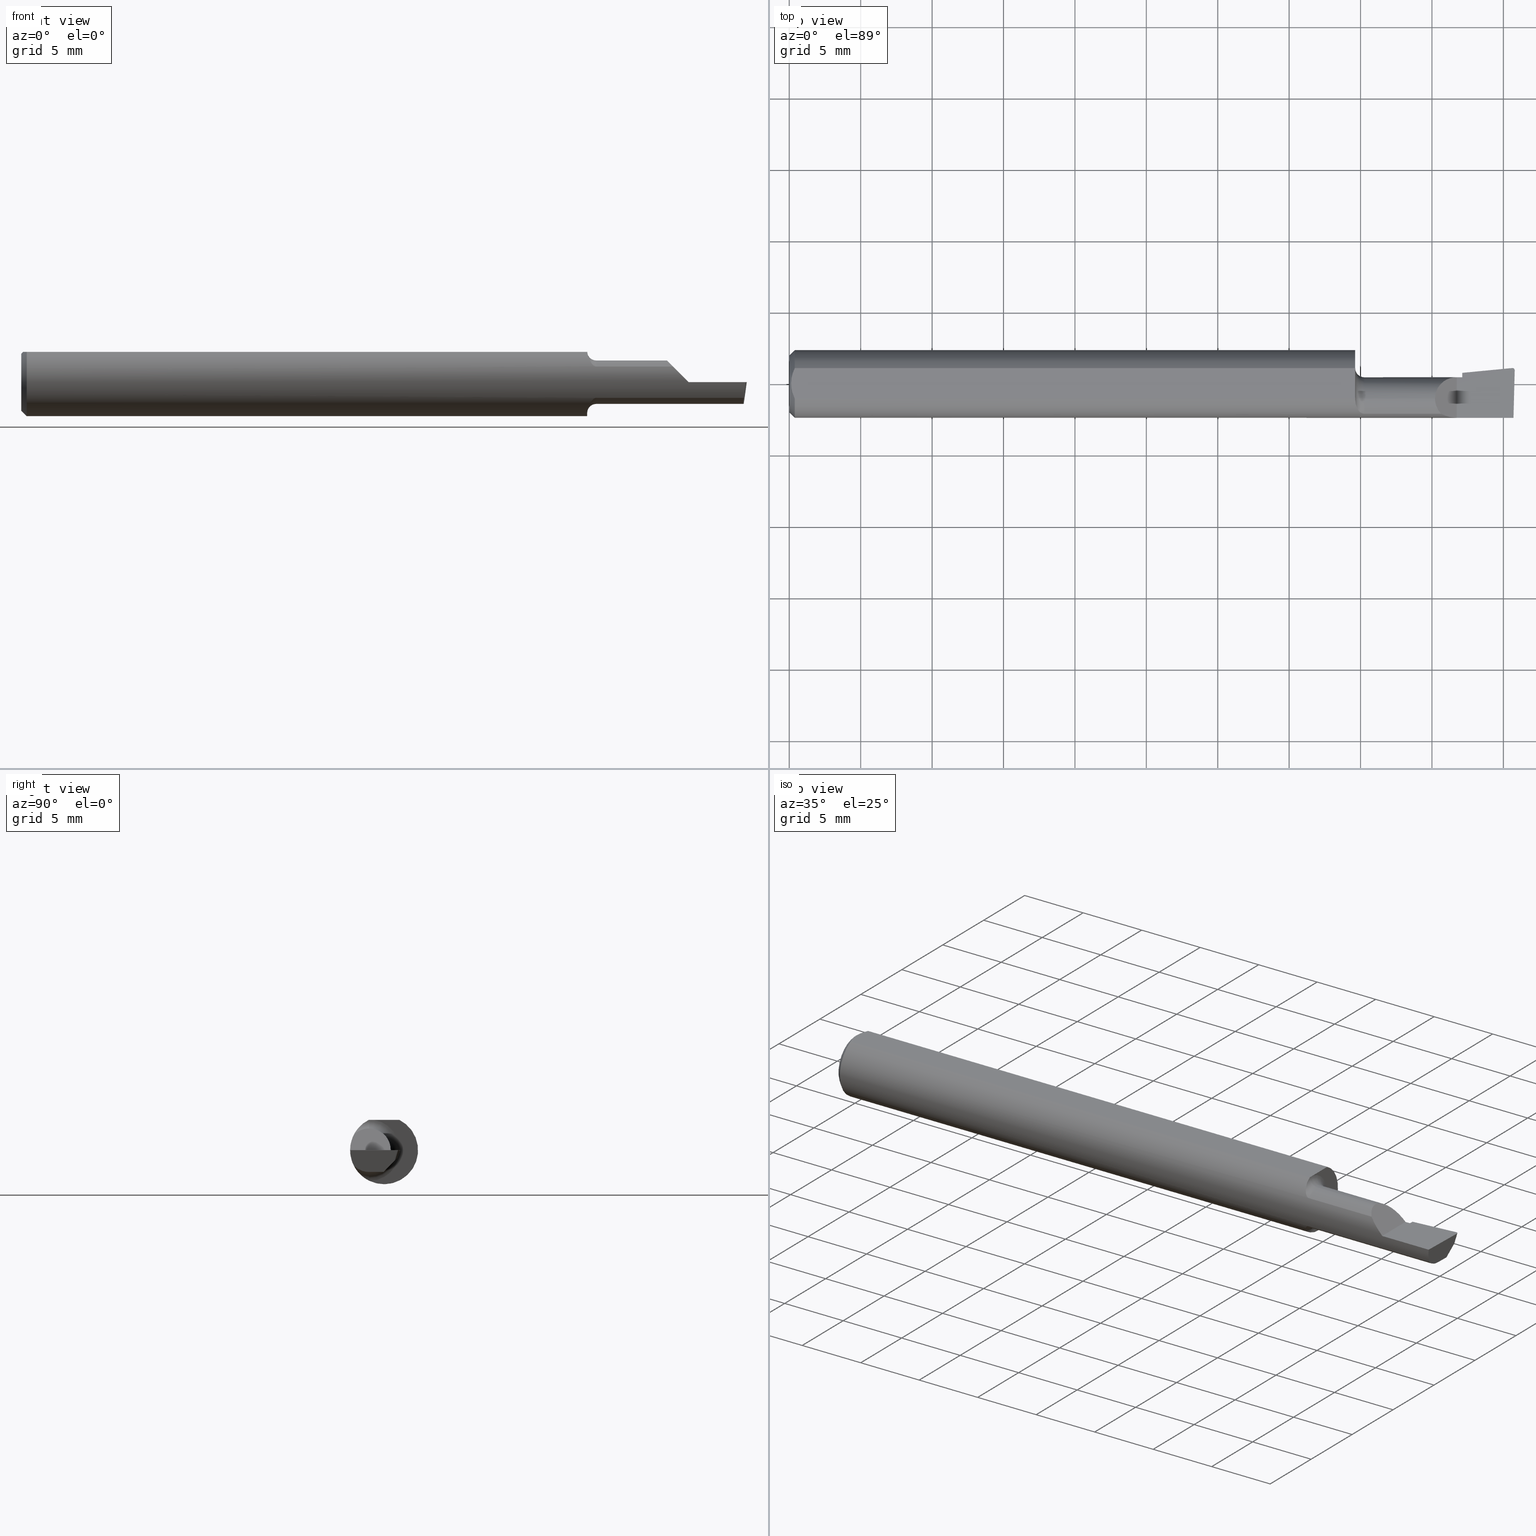
[diagram: canonical four-view strip — front | top / right | iso, engineering-drawing reading convention]
A machine part, canonical four-view strip (front | top / right | iso — engineering-drawing reading convention). The complete STEP part file that produces these views, byte-faithful:
ISO-10303-21;
HEADER;
FILE_DESCRIPTION (( 'STEP AP214' ),
    '1' );
FILE_NAME ('B140400R.STEP',
    '2020-05-08T22:40:07',
    ( '' ),
    ( '' ),
    'SwSTEP 2.0',
    'SolidWorks 2018',
    '' );
FILE_SCHEMA (( 'AUTOMOTIVE_DESIGN' ));
ENDSEC;

DATA;
#1 = DIRECTION ( 'NONE',  ( -0.0000000000000000000, 0.0000000000000000000, 1.000000000000000000 ) ) ;
#2 = VERTEX_POINT ( 'NONE', #658 ) ;
#3 = CARTESIAN_POINT ( 'NONE',  ( 0.01499999999999999598, 0.0000000000000000000, 0.0000000000000000000 ) ) ;
#4 = DIRECTION ( 'NONE',  ( 0.0000000000000000000, 0.0000000000000000000, 1.000000000000000000 ) ) ;
#5 = DIRECTION ( 'NONE',  ( 0.0000000000000000000, 0.0000000000000000000, 1.000000000000000000 ) ) ;
#6 = EDGE_CURVE ( 'NONE', #191, #590, #377, .T. ) ;
#7 = ORIENTED_EDGE ( 'NONE', *, *, #86, .T. ) ;
#8 = ORIENTED_EDGE ( 'NONE', *, *, #29, .F. ) ;
#9 = DIRECTION ( 'NONE',  ( -1.000000000000000000, 0.0000000000000000000, -0.0000000000000000000 ) ) ;
#10 = CIRCLE ( 'NONE', #724, 0.02500000000000007425 ) ;
#11 = VECTOR ( 'NONE', #133, 39.37007874015748143 ) ;
#12 = AXIS2_PLACEMENT_3D ( 'NONE', #186, #131, #129 ) ;
#13 = ORIENTED_EDGE ( 'NONE', *, *, #338, .T. ) ;
#14 = FACE_OUTER_BOUND ( 'NONE', #699, .T. ) ;
#15 = VERTEX_POINT ( 'NONE', #202 ) ;
#16 = CARTESIAN_POINT ( 'NONE',  ( 1.990883086864199569, 0.03733652896197538901, -0.02004403198038583189 ) ) ;
#17 = AXIS2_PLACEMENT_3D ( 'NONE', #3, #293, #723 ) ;
#18 = EDGE_LOOP ( 'NONE', ( #347, #182, #396, #721, #601, #507, #485 ) ) ;
#19 = B_SPLINE_CURVE_WITH_KNOTS ( 'NONE', 3,
 ( #73, #77, #51, #46, #40, #38, #36, #34, #28, #25, #22, #20 ),
 .UNSPECIFIED., .F., .F.,
 ( 4, 2, 2, 2, 2, 4 ),
 ( 4.385794166512837915E-07, 0.0004249653867803446445, 0.0008494921941440380627, 0.001274019001507731372, 0.001486282405189578298, 0.001698545808871425441 ),
 .UNSPECIFIED. ) ;
#20 = CARTESIAN_POINT ( 'NONE',  ( 1.584999999999999964, -0.08307469879518060429, 0.04312255117789304260 ) ) ;
#21 = UNCERTAINTY_MEASURE_WITH_UNIT (LENGTH_MEASURE( 1.000000000000000082E-05 ), #227, 'distance_accuracy_value', 'NONE');
#22 = CARTESIAN_POINT ( 'NONE',  ( 1.582123707331538176, -0.08307469879541819202, 0.04312255117743575561 ) ) ;
#23 = ORIENTED_EDGE ( 'NONE', *, *, #240, .T. ) ;
#24 = DIRECTION ( 'NONE',  ( 1.000000000000000000, 0.0000000000000000000, 0.0000000000000000000 ) ) ;
#25 = CARTESIAN_POINT ( 'NONE',  ( 1.579521451227007711, -0.08233651528522395457, 0.04455777109850305590 ) ) ;
#26 = FACE_OUTER_BOUND ( 'NONE', #173, .T. ) ;
#27 = FACE_OUTER_BOUND ( 'NONE', #469, .T. ) ;
#28 = CARTESIAN_POINT ( 'NONE',  ( 1.575413575230741436, -0.08042664989321213209, 0.04791921015141203249 ) ) ;
#29 = EDGE_CURVE ( 'NONE', #418, #394, #570, .T. ) ;
#30 = CARTESIAN_POINT ( 'NONE',  ( 1.996083844369372917, -0.0008291687483132151315, -0.05990000000000000185 ) ) ;
#31 = EDGE_CURVE ( 'NONE', #215, #88, #675, .T. ) ;
#32 = CARTESIAN_POINT ( 'NONE',  ( 1.990282674007080255, 0.03732143363315362783, -0.02000000000000000042 ) ) ;
#33 = ORIENTED_EDGE ( 'NONE', *, *, #31, .T. ) ;
#34 = CARTESIAN_POINT ( 'NONE',  ( 1.573723886093656876, -0.07921817987507920322, 0.04991299092652130842 ) ) ;
#35 = LENGTH_MEASURE_WITH_UNIT ( LENGTH_MEASURE( 0.02539999999999999897 ), #374 );
#36 = CARTESIAN_POINT ( 'NONE',  ( 1.569277238843510558, -0.07518688180261749732, 0.05595855205958088358 ) ) ;
#37 = LINE ( 'NONE', #550, #436 ) ;
#38 = CARTESIAN_POINT ( 'NONE',  ( 1.567169981117899846, -0.07201923175886887352, 0.06001882546782344452 ) ) ;
#39 = CARTESIAN_POINT ( 'NONE',  ( 0.0000000000000000000, -0.04209513035969835587, 0.08360000000000000764 ) ) ;
#40 = CARTESIAN_POINT ( 'NONE',  ( 1.563721006865827379, -0.06478644025684783536, 0.06776242552123265539 ) ) ;
#41 = FACE_OUTER_BOUND ( 'NONE', #388, .T. ) ;
#42 = DIRECTION ( 'NONE',  ( -1.000000000000000000, -0.0000000000000000000, -0.0000000000000000000 ) ) ;
#43 = ORIENTED_EDGE ( 'NONE', *, *, #323, .F. ) ;
#44 = EDGE_CURVE ( 'NONE', #283, #201, #10, .T. ) ;
#45 = EDGE_LOOP ( 'NONE', ( #665, #708, #66, #352 ) ) ;
#47 = FACE_OUTER_BOUND ( 'NONE', #305, .T. ) ;
#46 = CARTESIAN_POINT ( 'NONE',  ( 1.562429122971264350, -0.06066239981255451552, 0.07149394324265900824 ) ) ;
#48 = CARTESIAN_POINT ( 'NONE',  ( 1.559999999999999831, -0.04014498638740777309, -0.08455714216888016166 ) ) ;
#49 = CARTESIAN_POINT ( 'NONE',  ( 0.01499999999999999598, 0.0000000000000000000, 0.0000000000000000000 ) ) ;
#50 = VERTEX_POINT ( 'NONE', #705 ) ;
#51 = CARTESIAN_POINT ( 'NONE',  ( 1.560661035553191134, -0.05185656404701179806, 0.07811662714583196554 ) ) ;
#52 = ORIENTED_EDGE ( 'NONE', *, *, #383, .F. ) ;
#53 = CARTESIAN_POINT ( 'NONE',  ( 0.0000000000000000000, -0.04149999999999999523, -0.05989999999999998798 ) ) ;
#54 = CARTESIAN_POINT ( 'NONE',  ( 0.005000000000000236026, 1.025183009042025117E-17, 0.08360000000000000764 ) ) ;
#55 = EDGE_CURVE ( 'NONE', #104, #120, #501, .T. ) ;
#56 = SURFACE_STYLE_FILL_AREA ( #406 ) ;
#57 = DIRECTION ( 'NONE',  ( -0.0000000000000000000, 0.0000000000000000000, 1.000000000000000000 ) ) ;
#58 = LINE ( 'NONE', #592, #103 ) ;
#59 = CARTESIAN_POINT ( 'NONE',  ( 1.993512870449314134, 0.04374616680637218036, -7.256471233170699482E-17 ) ) ;
#60 = ORIENTED_EDGE ( 'NONE', *, *, #440, .T. ) ;
#61 = DIRECTION ( 'NONE',  ( 1.000000000000000000, 0.0000000000000000000, 0.0000000000000000000 ) ) ;
#62 = CARTESIAN_POINT ( 'NONE',  ( 1.990393312970557327, -0.04150000000000000216, -0.05990000000000000185 ) ) ;
#63 = CARTESIAN_POINT ( 'NONE',  ( 1.559999999999999831, 0.0000000000000000000, 0.0000000000000000000 ) ) ;
#64 = DIRECTION ( 'NONE',  ( 0.7071067811865391350, 0.0000000000000000000, -0.7071067811865558994 ) ) ;
#65 = LINE ( 'NONE', #309, #630 ) ;
#66 = ORIENTED_EDGE ( 'NONE', *, *, #55, .F. ) ;
#67 = CARTESIAN_POINT ( 'NONE',  ( 0.01206089165507025739, -0.03555991978469312531, 0.08360000000000000764 ) ) ;
#68 = ORIENTED_EDGE ( 'NONE', *, *, #410, .T. ) ;
#69 = VECTOR ( 'NONE', #470, 39.37007874015748143 ) ;
#70 = EDGE_CURVE ( 'NONE', #394, #120, #37, .T. ) ;
#71 = CARTESIAN_POINT ( 'NONE',  ( 1.804911392386147506, 0.01839999999999998234, 0.03508860761385160232 ) ) ;
#72 = FACE_OUTER_BOUND ( 'NONE', #489, .T. ) ;
#73 = CARTESIAN_POINT ( 'NONE',  ( 1.560033712670300110, -0.04209513035969835587, 0.08360000000000000764 ) ) ;
#74 = CARTESIAN_POINT ( 'NONE',  ( 1.584999999999999964, -0.08307469879518090961, -0.04312255117789274422 ) ) ;
#75 = EDGE_LOOP ( 'NONE', ( #480, #561, #135, #525 ) ) ;
#76 = DIMENSIONAL_EXPONENTS ( 1.000000000000000000, 0.0000000000000000000, 0.0000000000000000000, 0.0000000000000000000, 0.0000000000000000000, 0.0000000000000000000, 0.0000000000000000000 ) ;
#77 = CARTESIAN_POINT ( 'NONE',  ( 1.560163936266268259, -0.04714148439307228045, 0.08105900800387488836 ) ) ;
#78 = CONICAL_SURFACE ( 'NONE', #156, 0.09360000000000001652, 0.7853981633974601584 ) ;
#79 = CARTESIAN_POINT ( 'NONE',  ( 1.107894390816139163, -0.04150000000000000216, 4.217516215662293437E-16 ) ) ;
#80 = EDGE_CURVE ( 'NONE', #560, #185, #291, .T. ) ;
#81 = ORIENTED_EDGE ( 'NONE', *, *, #593, .F. ) ;
#82 = EDGE_LOOP ( 'NONE', ( #181, #197, #346, #258, #231, #391, #367, #405 ) ) ;
#83 = AXIS2_PLACEMENT_3D ( 'NONE', #682, #172, #166 ) ;
#84 = DIRECTION ( 'NONE',  ( 1.000000000000000000, 0.0000000000000000000, 0.0000000000000000000 ) ) ;
#85 = ORIENTED_EDGE ( 'NONE', *, *, #31, .F. ) ;
#86 = EDGE_CURVE ( 'NONE', #433, #98, #587, .T. ) ;
#87 = PRESENTATION_STYLE_ASSIGNMENT (( #556 ) ) ;
#88 = VERTEX_POINT ( 'NONE', #461 ) ;
#89 = ADVANCED_FACE ( 'NONE', ( #26 ), #426, .F. ) ;
#90 = MANIFOLD_SOLID_BREP ( '01EF20D8-C4AA-4b41-BB1E-33027A1A4208-GAAFaceID14', #700 ) ;
#91 = ADVANCED_FACE ( 'NONE', ( #599 ), #349, .T. ) ;
#92 = CARTESIAN_POINT ( 'NONE',  ( 1.780099999999999349, -0.05720488466914005338, 0.05989999999999997410 ) ) ;
#93 = LINE ( 'NONE', #115, #11 ) ;
#94 = EDGE_LOOP ( 'NONE', ( #444, #398, #575, #727, #199 ) ) ;
#95 = CARTESIAN_POINT ( 'NONE',  ( 1.560033822879743681, -0.04150000000000000216, 0.08360000000000000764 ) ) ;
#96 = FACE_OUTER_BOUND ( 'NONE', #94, .T. ) ;
#97 = DIRECTION ( 'NONE',  ( -1.000000000000000000, -0.0000000000000000000, -0.0000000000000000000 ) ) ;
#98 = VERTEX_POINT ( 'NONE', #304 ) ;
#99 = DIRECTION ( 'NONE',  ( -1.000000000000000000, -0.0000000000000000000, -0.0000000000000000000 ) ) ;
#100 = CARTESIAN_POINT ( 'NONE',  ( 0.0000000000000000000, 1.054420894065869177E-17, 0.07859999999999965625 ) ) ;
#101 = ADVANCED_FACE ( 'NONE', ( #710 ), #389, .T. ) ;
#102 = EDGE_LOOP ( 'NONE', ( #341, #294, #264, #454 ) ) ;
#103 = VECTOR ( 'NONE', #84, 39.37007874015748143 ) ;
#104 = VERTEX_POINT ( 'NONE', #32 ) ;
#105 = DIRECTION ( 'NONE',  ( 0.0000000000000000000, 0.0000000000000000000, 1.000000000000000000 ) ) ;
#106 = CARTESIAN_POINT ( 'NONE',  ( 1.560006719116742380, -0.04082489400077269487, -0.08423096411932438909 ) ) ;
#107 = AXIS2_PLACEMENT_3D ( 'NONE', #545, #618, #567 ) ;
#108 = CARTESIAN_POINT ( 'NONE',  ( 1.854999999999999982, -0.04150000000000000216, -0.05990000000000000185 ) ) ;
#109 = LINE ( 'NONE', #379, #544 ) ;
#110 = CARTESIAN_POINT ( 'NONE',  ( 1.575354605856553514, -0.08039319987159068703, -0.04797642756495489741 ) ) ;
#111 = APPLICATION_PROTOCOL_DEFINITION ( 'draft international standard', 'automotive_design', 1998, #169 ) ;
#112 = CARTESIAN_POINT ( 'NONE',  ( 1.996386342823452287, -0.09360000000000009979, -6.634435288474569554E-17 ) ) ;
#113 = ORIENTED_EDGE ( 'NONE', *, *, #628, .F. ) ;
#114 = CARTESIAN_POINT ( 'NONE',  ( 0.005975039161239525769, -0.01453776427033148279, 0.08359999999999997988 ) ) ;
#115 = CARTESIAN_POINT ( 'NONE',  ( 0.01499999999999999598, 1.146269404001922775E-17, 0.09360000000000001652 ) ) ;
#116 = ORIENTED_EDGE ( 'NONE', *, *, #532, .T. ) ;
#117 = ADVANCED_FACE ( 'NONE', ( #515 ), #255, .F. ) ;
#118 = LINE ( 'NONE', #625, #247 ) ;
#119 = EDGE_CURVE ( 'NONE', #201, #257, #355, .T. ) ;
#120 = VERTEX_POINT ( 'NONE', #254 ) ;
#121 = VERTEX_POINT ( 'NONE', #209 ) ;
#122 = CARTESIAN_POINT ( 'NONE',  ( 0.005000000000000228220, -0.007328888879231052964, 0.08360000000000000764 ) ) ;
#123 = ORIENTED_EDGE ( 'NONE', *, *, #549, .T. ) ;
#124 = PRODUCT ( 'B140400R', 'B140400R', '', ( #263 ) ) ;
#125 = CARTESIAN_POINT ( 'NONE',  ( 1.994610376530254747, 0.03716006620332611837, -0.02059586115756890587 ) ) ;
#126 = CIRCLE ( 'NONE', #17, 0.09360000000000001652 ) ;
#127 = VERTEX_POINT ( 'NONE', #246 ) ;
#128 = CARTESIAN_POINT ( 'NONE',  ( 1.991365359011874947, -0.08307469879518075695, -0.04312255117789293157 ) ) ;
#129 = DIRECTION ( 'NONE',  ( 0.0000000000000000000, -0.6963153109074925462, -0.7177360153954946975 ) ) ;
#130 = DIRECTION ( 'NONE',  ( 0.9953961983671787417, 0.09584575252022466130, -5.467869873542577569E-16 ) ) ;
#131 = DIRECTION ( 'NONE',  ( 0.06894566448119619773, -0.7160281025913034503, 0.6946583704589934793 ) ) ;
#132 = VERTEX_POINT ( 'NONE', #200 ) ;
#133 = DIRECTION ( 'NONE',  ( 0.7071067811865391350, 8.659560562355035164E-17, 0.7071067811865558994 ) ) ;
#134 = CARTESIAN_POINT ( 'NONE',  ( 0.01499999999999999598, 0.04209513035969837669, 0.08360000000000000764 ) ) ;
#135 = ORIENTED_EDGE ( 'NONE', *, *, #198, .F. ) ;
#136 = VECTOR ( 'NONE', #130, 39.37007874015748143 ) ;
#137 = CARTESIAN_POINT ( 'NONE',  ( 0.0000000000000000000, 0.0000000000000000000, 0.0000000000000000000 ) ) ;
#138 = EDGE_CURVE ( 'NONE', #651, #140, #451, .T. ) ;
#139 = TOROIDAL_SURFACE ( 'NONE', #569, 0.08489999999999997549, 0.02500000000000007425 ) ;
#140 = VERTEX_POINT ( 'NONE', #189 ) ;
#141 = ADVANCED_FACE ( 'NONE', ( #47 ), #78, .T. ) ;
#142 = CARTESIAN_POINT ( 'NONE',  ( 1.796877448822106649, -0.08307469879518077083, 0.04312255117789291076 ) ) ;
#143 = DIRECTION ( 'NONE',  ( 0.0000000000000000000, 0.0000000000000000000, 1.000000000000000000 ) ) ;
#144 = ADVANCED_FACE ( 'NONE', ( #27 ), #153, .F. ) ;
#145 = LINE ( 'NONE', #30, #475 ) ;
#146 = DIRECTION ( 'NONE',  ( -1.000000000000000000, -0.0000000000000000000, -0.0000000000000000000 ) ) ;
#147 = CARTESIAN_POINT ( 'NONE',  ( 1.785977184218892067, -0.07176861043311237587, 0.05402281578110743054 ) ) ;
#148 = FACE_OUTER_BOUND ( 'NONE', #45, .T. ) ;
#149 = EDGE_LOOP ( 'NONE', ( #325, #635, #411, #641, #248 ) ) ;
#150 = ORIENTED_EDGE ( 'NONE', *, *, #370, .F. ) ;
#151 = EDGE_CURVE ( 'NONE', #448, #431, #354, .T. ) ;
#152 = DIRECTION ( 'NONE',  ( 0.0000000000000000000, 0.0000000000000000000, 1.000000000000000000 ) ) ;
#153 = PLANE ( 'NONE',  #12 ) ;
#154 = DIRECTION ( 'NONE',  ( 0.9953961983671800740, 0.09584575252021028391, 0.0000000000000000000 ) ) ;
#155 = FACE_OUTER_BOUND ( 'NONE', #551, .T. ) ;
#156 = AXIS2_PLACEMENT_3D ( 'NONE', #372, #180, #195 ) ;
#157 = TOROIDAL_SURFACE ( 'NONE', #543, 0.08489999999999997549, 0.02500000000000007425 ) ;
#158 = LINE ( 'NONE', #225, #321 ) ;
#159 = ORIENTED_EDGE ( 'NONE', *, *, #370, .T. ) ;
#160 = CARTESIAN_POINT ( 'NONE',  ( 1.824917075065774830, -0.09360000000000001652, 0.01508292493422502302 ) ) ;
#161 = LINE ( 'NONE', #108, #339 ) ;
#162 = EDGE_CURVE ( 'NONE', #2, #594, #19, .T. ) ;
#163 = EDGE_CURVE ( 'NONE', #120, #215, #713, .T. ) ;
#164 = CARTESIAN_POINT ( 'NONE',  ( 1.996386342823452287, -0.09360000000000009979, -6.634435288474569554E-17 ) ) ;
#165 = CARTESIAN_POINT ( 'NONE',  ( 1.719999999999999973, -0.08307469879518075695, 0.04312255117789293157 ) ) ;
#166 = DIRECTION ( 'NONE',  ( 0.0000000000000000000, 0.0000000000000000000, 1.000000000000000000 ) ) ;
#167 = ORIENTED_EDGE ( 'NONE', *, *, #578, .F. ) ;
#168 = CARTESIAN_POINT ( 'NONE',  ( 1.846299648997746123, 0.02345744519840442868, -0.02000000000000000042 ) ) ;
#169 = APPLICATION_CONTEXT ( 'automotive_design' ) ;
#170 = CARTESIAN_POINT ( 'NONE',  ( 1.569237437666585633, -0.07513599091569017618, -0.05602756047418831764 ) ) ;
#171 = ORIENTED_EDGE ( 'NONE', *, *, #44, .T. ) ;
#172 = DIRECTION ( 'NONE',  ( -1.000000000000000000, -0.0000000000000000000, -0.0000000000000000000 ) ) ;
#173 = EDGE_LOOP ( 'NONE', ( #85, #565, #301, #477, #500, #373 ) ) ;
#174 = DIRECTION ( 'NONE',  ( 0.0000000000000000000, 0.0000000000000000000, 1.000000000000000000 ) ) ;
#175 = LINE ( 'NONE', #455, #596 ) ;
#176 = ORIENTED_EDGE ( 'NONE', *, *, #163, .T. ) ;
#177 = DIRECTION ( 'NONE',  ( 0.0000000000000000000, 0.0000000000000000000, -1.000000000000000000 ) ) ;
#178 = ADVANCED_BREP_SHAPE_REPRESENTATION ( 'B140400R', ( #90, #584 ), #722 ) ;
#179 = AXIS2_PLACEMENT_3D ( 'NONE', #327, #385, #152 ) ;
#180 = DIRECTION ( 'NONE',  ( 1.000000000000000000, 0.0000000000000000000, 0.0000000000000000000 ) ) ;
#181 = ORIENTED_EDGE ( 'NONE', *, *, #624, .T. ) ;
#182 = ORIENTED_EDGE ( 'NONE', *, *, #534, .F. ) ;
#183 = CARTESIAN_POINT ( 'NONE',  ( 0.01499999999999999598, 0.0000000000000000000, -0.09360000000000001652 ) ) ;
#184 = VECTOR ( 'NONE', #270, 39.37007874015748143 ) ;
#185 = VERTEX_POINT ( 'NONE', #134 ) ;
#186 = CARTESIAN_POINT ( 'NONE',  ( 1.846299648997746123, 0.02345744519840442868, -0.02000000000000000042 ) ) ;
#187 =( BOUNDED_CURVE ( )  B_SPLINE_CURVE ( 3, ( #537, #533, #562, #553 ),
 .UNSPECIFIED., .F., .T. ) 
 B_SPLINE_CURVE_WITH_KNOTS ( ( 4, 4 ),
 ( 5.726109673675775724, 6.493234751459703524 ),
 .UNSPECIFIED. ) 
 CURVE ( )  GEOMETRIC_REPRESENTATION_ITEM ( )  RATIONAL_B_SPLINE_CURVE ( ( 1.000000000000000000, 0.9515582177473689285, 0.9515582177473689285, 1.000000000000000000 ) ) 
 REPRESENTATION_ITEM ( '' )  );
#188 = CARTESIAN_POINT ( 'NONE',  ( 1.840000000000000080, -0.09360000000000005815, 1.959434878635762025E-17 ) ) ;
#189 = CARTESIAN_POINT ( 'NONE',  ( 1.840000000000000080, 0.01839999999999989908, 1.959434878635762025E-17 ) ) ;
#190 = PRODUCT_DEFINITION_SHAPE ( 'NONE', 'NONE',  #329 ) ;
#191 = VERTEX_POINT ( 'NONE', #100 ) ;
#192 = CARTESIAN_POINT ( 'NONE',  ( 1.579498465877714031, -0.08233174416856396671, -0.04456779206614374517 ) ) ;
#193 = DIRECTION ( 'NONE',  ( -1.000000000000000000, -0.0000000000000000000, -0.0000000000000000000 ) ) ;
#194 = ORIENTED_EDGE ( 'NONE', *, *, #277, .F. ) ;
#195 = DIRECTION ( 'NONE',  ( 0.0000000000000000000, 0.0000000000000000000, -1.000000000000000000 ) ) ;
#196 = DIRECTION ( 'NONE',  ( -0.0000000000000000000, 1.000000000000000000, -0.0000000000000000000 ) ) ;
#197 = ORIENTED_EDGE ( 'NONE', *, *, #29, .T. ) ;
#198 = EDGE_CURVE ( 'NONE', #548, #104, #365, .T. ) ;
#199 = ORIENTED_EDGE ( 'NONE', *, *, #668, .T. ) ;
#200 = CARTESIAN_POINT ( 'NONE',  ( 1.854999999999999982, 0.03043808801135922115, 1.030335937757294514E-15 ) ) ;
#201 = VERTEX_POINT ( 'NONE', #269 ) ;
#202 = CARTESIAN_POINT ( 'NONE',  ( 1.559999999999999831, 0.04209513035969836975, 0.08360000000000000764 ) ) ;
#203 = AXIS2_PLACEMENT_3D ( 'NONE', #265, #295, #250 ) ;
#204 = CARTESIAN_POINT ( 'NONE',  ( 1.840000000000000080, -0.09360000000000005815, 1.959434878635762025E-17 ) ) ;
#205 = CARTESIAN_POINT ( 'NONE',  ( 1.560604804002112989, -0.05145819953596716956, -0.07838465384289880489 ) ) ;
#206 = ADVANCED_FACE ( 'NONE', ( #72 ), #677, .T. ) ;
#207 = VERTEX_POINT ( 'NONE', #616 ) ;
#208 = CARTESIAN_POINT ( 'NONE',  ( 1.840000000000000080, -0.2500000000000000555, 1.959434878635762025E-17 ) ) ;
#209 = CARTESIAN_POINT ( 'NONE',  ( 1.854999999999999982, -0.04150000000000000216, -0.05990000000000000185 ) ) ;
#210 = DIRECTION ( 'NONE',  ( -1.000000000000000000, -0.0000000000000000000, -0.0000000000000000000 ) ) ;
#211 = DIRECTION ( 'NONE',  ( 0.0000000000000000000, 0.0000000000000000000, 1.000000000000000000 ) ) ;
#212 = CARTESIAN_POINT ( 'NONE',  ( 1.992827658777091893, -0.09002356847881787250, -0.02973569812382171815 ) ) ;
#213 = ORIENTED_EDGE ( 'NONE', *, *, #666, .T. ) ;
#214 = DIRECTION ( 'NONE',  ( -0.02617694830786435750, -0.9996573249755573709, 0.0000000000000000000 ) ) ;
#215 = VERTEX_POINT ( 'NONE', #357 ) ;
#216 = EDGE_CURVE ( 'NONE', #185, #15, #58, .T. ) ;
#217 = CARTESIAN_POINT ( 'NONE',  ( 0.01499999999999999944, -0.04209513035969835587, 0.08360000000000000764 ) ) ;
#218 = CARTESIAN_POINT ( 'NONE',  ( 1.993512870449314134, 0.04374616680637218036, -7.256471233170699482E-17 ) ) ;
#219 = DIRECTION ( 'NONE',  ( -1.000000000000000000, -0.0000000000000000000, -0.0000000000000000000 ) ) ;
#220 = CARTESIAN_POINT ( 'NONE',  ( 1.992906680581893131, 0.04371699102466929804, -6.439972649628915015E-17 ) ) ;
#221 = ORIENTED_EDGE ( 'NONE', *, *, #532, .F. ) ;
#222 = PLANE ( 'NONE',  #728 ) ;
#223 = DIRECTION ( 'NONE',  ( 0.0000000000000000000, 0.2936076258024065688, 0.9559260233253794592 ) ) ;
#224 = DIRECTION ( 'NONE',  ( -1.000000000000000000, -0.0000000000000000000, -0.0000000000000000000 ) ) ;
#225 = CARTESIAN_POINT ( 'NONE',  ( 1.854999999999999982, 0.03726901833842542755, -0.006627062419125365027 ) ) ;
#226 = ORIENTED_EDGE ( 'NONE', *, *, #198, .T. ) ;
#227 =( CONVERSION_BASED_UNIT ( 'INCH', #35 ) LENGTH_UNIT ( ) NAMED_UNIT ( #286 ) );
#228 = DIRECTION ( 'NONE',  ( 0.0000000000000000000, 0.9524855432518773979, -0.3045837978228257970 ) ) ;
#229 =( BOUNDED_CURVE ( )  B_SPLINE_CURVE ( 3, ( #188, #160, #241, #244 ),
 .UNSPECIFIED., .F., .F. ) 
 B_SPLINE_CURVE_WITH_KNOTS ( ( 4, 4 ),
 ( 4.712388980384689674, 5.191185112936687496 ),
 .UNSPECIFIED. ) 
 CURVE ( )  GEOMETRIC_REPRESENTATION_ITEM ( )  RATIONAL_B_SPLINE_CURVE ( ( 1.000000000000000000, 0.9809872534005956712, 0.9809872534005956712, 1.000000000000000000 ) ) 
 REPRESENTATION_ITEM ( '' )  );
#230 = CARTESIAN_POINT ( 'NONE',  ( 0.0000000000000000000, -0.04150000000000000216, 0.0000000000000000000 ) ) ;
#231 = ORIENTED_EDGE ( 'NONE', *, *, #597, .F. ) ;
#232 = CARTESIAN_POINT ( 'NONE',  ( 0.0000000000000000000, 0.0000000000000000000, 0.0000000000000000000 ) ) ;
#233 = ORIENTED_EDGE ( 'NONE', *, *, #55, .T. ) ;
#234 = DIRECTION ( 'NONE',  ( 0.0000000000000000000, 0.0000000000000000000, 1.000000000000000000 ) ) ;
#235 = ORIENTED_EDGE ( 'NONE', *, *, #253, .T. ) ;
#236 = STYLED_ITEM ( 'NONE', ( #457 ), #90 ) ;
#237 = DIRECTION ( 'NONE',  ( -1.000000000000000000, -0.0000000000000000000, -0.0000000000000000000 ) ) ;
#238 = VECTOR ( 'NONE', #463, 39.37007874015748143 ) ;
#239 = CARTESIAN_POINT ( 'NONE',  ( 1.584999999999999964, -0.04150000000000000216, 0.0000000000000000000 ) ) ;
#240 = EDGE_CURVE ( 'NONE', #121, #201, #540, .T. ) ;
#241 = CARTESIAN_POINT ( 'NONE',  ( 1.810264301876177928, -0.09002356847881788637, 0.02973569812382168345 ) ) ;
#242 = AXIS2_PLACEMENT_3D ( 'NONE', #49, #42, #5 ) ;
#243 = ORIENTED_EDGE ( 'NONE', *, *, #634, .T. ) ;
#244 = CARTESIAN_POINT ( 'NONE',  ( 1.796877448822106649, -0.08307469879518077083, 0.04312255117789291076 ) ) ;
#245 = VERTEX_POINT ( 'NONE', #112 ) ;
#246 = CARTESIAN_POINT ( 'NONE',  ( 1.854999999999999982, -0.01441399783868785485, -0.05990000000000000185 ) ) ;
#247 = VECTOR ( 'NONE', #726, 39.37007874015748143 ) ;
#248 = ORIENTED_EDGE ( 'NONE', *, *, #119, .F. ) ;
#249 = FACE_OUTER_BOUND ( 'NONE', #535, .T. ) ;
#250 = DIRECTION ( 'NONE',  ( -0.7071067811865516806, 0.0000000000000000000, 0.7071067811865433539 ) ) ;
#251 = EDGE_CURVE ( 'NONE', #132, #50, #472, .T. ) ;
#252 = EDGE_LOOP ( 'NONE', ( #529, #116, #150, #7, #13, #632 ) ) ;
#253 = EDGE_CURVE ( 'NONE', #191, #560, #93, .T. ) ;
#254 = CARTESIAN_POINT ( 'NONE',  ( 1.990883086864199569, 0.03733652896197538901, -0.02004403198038583189 ) ) ;
#255 = PLANE ( 'NONE',  #203 ) ;
#256 = CARTESIAN_POINT ( 'NONE',  ( 1.559999999999999831, 0.1436000000000000332, 0.08359999999999999376 ) ) ;
#257 = VERTEX_POINT ( 'NONE', #74 ) ;
#258 = ORIENTED_EDGE ( 'NONE', *, *, #251, .F. ) ;
#259 = CARTESIAN_POINT ( 'NONE',  ( 1.854999999999999982, 0.02429519371539584291, -0.02000000000000000042 ) ) ;
#260 = VECTOR ( 'NONE', #276, 39.37007874015748143 ) ;
#261 = EDGE_CURVE ( 'NONE', #548, #132, #458, .T. ) ;
#262 = EDGE_CURVE ( 'NONE', #651, #448, #229, .T. ) ;
#263 = PRODUCT_CONTEXT ( 'NONE', #604, 'mechanical' ) ;
#264 = ORIENTED_EDGE ( 'NONE', *, *, #337, .T. ) ;
#265 = CARTESIAN_POINT ( 'NONE',  ( 1.840000000000000080, -0.2500000000000000555, 1.959434878635762025E-17 ) ) ;
#266 = DIRECTION ( 'NONE',  ( 1.000000000000000000, 0.0000000000000000000, 0.0000000000000000000 ) ) ;
#267 = ORIENTED_EDGE ( 'NONE', *, *, #534, .T. ) ;
#268 = PLANE ( 'NONE',  #692 ) ;
#269 = CARTESIAN_POINT ( 'NONE',  ( 1.584999999999999964, -0.04149999999999999523, -0.05989999999999998104 ) ) ;
#270 = DIRECTION ( 'NONE',  ( 0.0000000000000000000, -1.000000000000000000, 1.189000693621284344E-16 ) ) ;
#271 = FACE_OUTER_BOUND ( 'NONE', #82, .T. ) ;
#272 =( BOUNDED_CURVE ( )  B_SPLINE_CURVE ( 3, ( #602, #212, #717, #164 ),
 .UNSPECIFIED., .F., .F. ) 
 B_SPLINE_CURVE_WITH_KNOTS ( ( 4, 4 ),
 ( 0.8819507499627812219, 1.360746882514778822 ),
 .UNSPECIFIED. ) 
 CURVE ( )  GEOMETRIC_REPRESENTATION_ITEM ( )  RATIONAL_B_SPLINE_CURVE ( ( 1.000000000000000000, 0.9809872534005956712, 0.9809872534005956712, 1.000000000000000000 ) ) 
 REPRESENTATION_ITEM ( '' )  );
#273 = EDGE_CURVE ( 'NONE', #393, #513, #187, .T. ) ;
#274 = CARTESIAN_POINT ( 'NONE',  ( 0.005000000000000236026, 1.025183009042025117E-17, 0.08360000000000000764 ) ) ;
#275 = CARTESIAN_POINT ( 'NONE',  ( 1.780099999999999349, -0.04150000000000000216, 0.05989999999999998798 ) ) ;
#276 = DIRECTION ( 'NONE',  ( -1.000000000000000000, -0.0000000000000000000, -0.0000000000000000000 ) ) ;
#277 = EDGE_CURVE ( 'NONE', #586, #121, #729, .T. ) ;
#278 = ORIENTED_EDGE ( 'NONE', *, *, #439, .F. ) ;
#279 = CARTESIAN_POINT ( 'NONE',  ( 2.000000000000000000, 0.1436000000000000332, 0.08359999999999999376 ) ) ;
#280 = CARTESIAN_POINT ( 'NONE',  ( 1.560020127471513085, -0.04150000000000000216, -0.08389702020930184245 ) ) ;
#281 = LENGTH_MEASURE_WITH_UNIT ( LENGTH_MEASURE( 0.02539999999999999897 ), #332 );
#282 = DIRECTION ( 'NONE',  ( -1.000000000000000000, -0.0000000000000000000, -0.0000000000000000000 ) ) ;
#283 = VERTEX_POINT ( 'NONE', #526 ) ;
#284 = CARTESIAN_POINT ( 'NONE',  ( 1.584999999999999964, -0.04150000000000000216, 0.0000000000000000000 ) ) ;
#285 =( CONVERSION_BASED_UNIT ( 'INCH', #281 ) LENGTH_UNIT ( ) NAMED_UNIT ( #76 ) );
#286 = DIMENSIONAL_EXPONENTS ( 1.000000000000000000, 0.0000000000000000000, 0.0000000000000000000, 0.0000000000000000000, 0.0000000000000000000, 0.0000000000000000000, 0.0000000000000000000 ) ;
#287 = EDGE_CURVE ( 'NONE', #594, #448, #683, .T. ) ;
#288 = VECTOR ( 'NONE', #505, 39.37007874015748143 ) ;
#289 = B_SPLINE_CURVE_WITH_KNOTS ( 'NONE', 3,
 ( #725, #67, #443, #114, #122, #54 ),
 .UNSPECIFIED., .F., .F.,
 ( 4, 2, 4 ),
 ( 0.005785415439423114564, 0.006333348270144337384, 0.006881281100865560205 ),
 .UNSPECIFIED. ) ;
#290 = ORIENTED_EDGE ( 'NONE', *, *, #656, .T. ) ;
#291 = B_SPLINE_CURVE_WITH_KNOTS ( 'NONE', 3,
 ( #538, #554, #588, #522, #536, #531 ),
 .UNSPECIFIED., .F., .F.,
 ( 4, 2, 4 ),
 ( 0.006881281100865560205, 0.007427683811376459971, 0.007974086521887359738 ),
 .UNSPECIFIED. ) ;
#292 = PRODUCT_DEFINITION_FORMATION_WITH_SPECIFIED_SOURCE ( 'ANY', '', #124, .NOT_KNOWN. ) ;
#293 = DIRECTION ( 'NONE',  ( -1.000000000000000000, -0.0000000000000000000, -0.0000000000000000000 ) ) ;
#294 = ORIENTED_EDGE ( 'NONE', *, *, #413, .T. ) ;
#295 = DIRECTION ( 'NONE',  ( -0.7071067811865433539, 0.0000000000000000000, -0.7071067811865516806 ) ) ;
#296 = ORIENTED_EDGE ( 'NONE', *, *, #261, .F. ) ;
#297 = CARTESIAN_POINT ( 'NONE',  ( 1.993108609909223228, 0.04373643460740121724, -6.821681774272533497E-17 ) ) ;
#298 = EDGE_CURVE ( 'NONE', #127, #548, #158, .T. ) ;
#299 = CARTESIAN_POINT ( 'NONE',  ( 0.0000000000000000000, -0.04150000000000000216, 0.05989999999999998798 ) ) ;
#300 = LINE ( 'NONE', #449, #288 ) ;
#301 = ORIENTED_EDGE ( 'NONE', *, *, #624, .F. ) ;
#302 = AXIS2_PLACEMENT_3D ( 'NONE', #63, #61, #177 ) ;
#303 = EDGE_CURVE ( 'NONE', #401, #571, #403, .T. ) ;
#304 = CARTESIAN_POINT ( 'NONE',  ( 1.560033822879743681, -0.04150000000000000216, 0.08360000000000000764 ) ) ;
#305 = EDGE_LOOP ( 'NONE', ( #577, #235, #322, #576, #43 ) ) ;
#306 =( NAMED_UNIT ( * ) SI_UNIT ( $, .STERADIAN. ) SOLID_ANGLE_UNIT ( ) );
#307 = CARTESIAN_POINT ( 'NONE',  ( 0.0000000000000000000, -0.04150000000000000216, 0.0000000000000000000 ) ) ;
#308 = CARTESIAN_POINT ( 'NONE',  ( 0.0000000000000000000, 0.0000000000000000000, 0.0000000000000000000 ) ) ;
#309 = CARTESIAN_POINT ( 'NONE',  ( 1.719999999999999973, -0.08307469879518075695, -0.04312255117789293157 ) ) ;
#310 = DIRECTION ( 'NONE',  ( 0.0000000000000000000, 0.0000000000000000000, -1.000000000000000000 ) ) ;
#311 = DIMENSIONAL_EXPONENTS ( 1.000000000000000000, 0.0000000000000000000, 0.0000000000000000000, 0.0000000000000000000, 0.0000000000000000000, 0.0000000000000000000, 0.0000000000000000000 ) ;
#312 = ORIENTED_EDGE ( 'NONE', *, *, #459, .F. ) ;
#313 = CARTESIAN_POINT ( 'NONE',  ( 1.563605992736884387, -0.06448586599545334808, -0.06805619079784636094 ) ) ;
#314 = DIRECTION ( 'NONE',  ( 1.000000000000000000, 0.0000000000000000000, 0.0000000000000000000 ) ) ;
#315 = EDGE_LOOP ( 'NONE', ( #696, #267, #159 ) ) ;
#316 = CARTESIAN_POINT ( 'NONE',  ( 1.562355770679723976, -0.06040702343486042264, -0.07171535245186137775 ) ) ;
#317 = CARTESIAN_POINT ( 'NONE',  ( 1.999910038027503445, 0.04096449087509779208, -7.195295054753370076E-17 ) ) ;
#318 = LINE ( 'NONE', #497, #637 ) ;
#319 = CARTESIAN_POINT ( 'NONE',  ( 0.0000000000000000000, 0.0000000000000000000, -0.07859999999999965625 ) ) ;
#320 = CARTESIAN_POINT ( 'NONE',  ( 1.560121283746727983, -0.04659318327468393167, -0.08137765652544184936 ) ) ;
#321 = VECTOR ( 'NONE', #368, 39.37007874015748854 ) ;
#322 = ORIENTED_EDGE ( 'NONE', *, *, #80, .T. ) ;
#323 = EDGE_CURVE ( 'NONE', #590, #401, #109, .T. ) ;
#324 = CARTESIAN_POINT ( 'NONE',  ( 1.990707973439665102, 0.03071856456557513909, -0.01939893992993008826 ) ) ;
#325 = ORIENTED_EDGE ( 'NONE', *, *, #240, .F. ) ;
#326 = EDGE_LOOP ( 'NONE', ( #643, #484, #690, #657 ) ) ;
#327 = CARTESIAN_POINT ( 'NONE',  ( 1.559999999999999831, -0.04150000000000000216, 0.0000000000000000000 ) ) ;
#328 = FACE_OUTER_BOUND ( 'NONE', #18, .T. ) ;
#329 = PRODUCT_DEFINITION ( 'UNKNOWN', '', #292, #517 ) ;
#330 = CARTESIAN_POINT ( 'NONE',  ( 1.995722974169268360, 0.02705373335153002726, -0.03112352112763100420 ) ) ;
#331 = FACE_OUTER_BOUND ( 'NONE', #75, .T. ) ;
#332 =( LENGTH_UNIT ( ) NAMED_UNIT ( * ) SI_UNIT ( $, .METRE. ) );
#333 = ORIENTED_EDGE ( 'NONE', *, *, #277, .T. ) ;
#334 = CARTESIAN_POINT ( 'NONE',  ( 1.560020127471513085, -0.04150000000000000216, -0.08389702020930184245 ) ) ;
#335 =( NAMED_UNIT ( * ) SI_UNIT ( $, .STERADIAN. ) SOLID_ANGLE_UNIT ( ) );
#336 = VECTOR ( 'NONE', #712, 39.37007874015748143 ) ;
#337 = EDGE_CURVE ( 'NONE', #513, #121, #523, .T. ) ;
#338 = EDGE_CURVE ( 'NONE', #98, #207, #714, .T. ) ;
#339 = VECTOR ( 'NONE', #573, 39.37007874015748143 ) ;
#340 =( NAMED_UNIT ( * ) PLANE_ANGLE_UNIT ( ) SI_UNIT ( $, .RADIAN. ) );
#341 = ORIENTED_EDGE ( 'NONE', *, *, #383, .T. ) ;
#342 = CARTESIAN_POINT ( 'NONE',  ( 5.659797890829555466E-31, -0.09359999999999998876, 1.030335658007946046E-15 ) ) ;
#343 = AXIS2_PLACEMENT_3D ( 'NONE', #706, #605, #228 ) ;
#344 = VECTOR ( 'NONE', #219, 39.37007874015748143 ) ;
#345 = ORIENTED_EDGE ( 'NONE', *, *, #597, .T. ) ;
#346 = ORIENTED_EDGE ( 'NONE', *, *, #400, .T. ) ;
#347 = ORIENTED_EDGE ( 'NONE', *, *, #86, .F. ) ;
#348 = FACE_OUTER_BOUND ( 'NONE', #623, .T. ) ;
#349 = PLANE ( 'NONE',  #419 ) ;
#350 = CARTESIAN_POINT ( 'NONE',  ( 1.993310817358676879, 0.04374616680637218036, -6.832789351565739517E-17 ) ) ;
#351 = CIRCLE ( 'NONE', #582, 0.05989999999999997410 ) ;
#352 = ORIENTED_EDGE ( 'NONE', *, *, #655, .F. ) ;
#353 = B_SPLINE_CURVE_WITH_KNOTS ( 'NONE', 3,
 ( #280, #106, #48, #381 ),
 .UNSPECIFIED., .F., .F.,
 ( 4, 4 ),
 ( 0.001735506710063803703, 0.001793010945052108665 ),
 .UNSPECIFIED. ) ;
#354 =( BOUNDED_CURVE ( )  B_SPLINE_CURVE ( 3, ( #142, #147, #92, #494 ),
 .UNSPECIFIED., .F., .T. ) 
 B_SPLINE_CURVE_WITH_KNOTS ( ( 4, 4 ),
 ( 5.516060229395657544, 6.283185307179586232 ),
 .UNSPECIFIED. ) 
 CURVE ( )  GEOMETRIC_REPRESENTATION_ITEM ( )  RATIONAL_B_SPLINE_CURVE ( ( 1.000000000000000000, 0.9515582177473689285, 0.9515582177473689285, 1.000000000000000000 ) ) 
 REPRESENTATION_ITEM ( '' )  );
#355 = CIRCLE ( 'NONE', #502, 0.05989999999999997410 ) ;
#356 = DIRECTION ( 'NONE',  ( -1.000000000000000000, -0.0000000000000000000, -0.0000000000000000000 ) ) ;
#357 = CARTESIAN_POINT ( 'NONE',  ( 1.995722974169268360, 0.02705373335153002726, -0.03112352112763100420 ) ) ;
#358 = CARTESIAN_POINT ( 'NONE',  ( 2.000000000000000000, -0.04150000000000000216, -0.05990000000000000185 ) ) ;
#359 =( NAMED_UNIT ( * ) SI_UNIT ( $, .STERADIAN. ) SOLID_ANGLE_UNIT ( ) );
#360 =( NAMED_UNIT ( * ) PLANE_ANGLE_UNIT ( ) SI_UNIT ( $, .RADIAN. ) );
#361 = FILL_AREA_STYLE_COLOUR ( '', #520 ) ;
#362 =( CONVERSION_BASED_UNIT ( 'INCH', #417 ) LENGTH_UNIT ( ) NAMED_UNIT ( #311 ) );
#363 = DIRECTION ( 'NONE',  ( -1.000000000000000000, -0.0000000000000000000, -0.0000000000000000000 ) ) ;
#364 = ADVANCED_FACE ( 'NONE', ( #271 ), #375, .F. ) ;
#366 =( LENGTH_UNIT ( ) NAMED_UNIT ( * ) SI_UNIT ( $, .METRE. ) );
#365 = LINE ( 'NONE', #168, #528 ) ;
#367 = ORIENTED_EDGE ( 'NONE', *, *, #138, .F. ) ;
#368 = DIRECTION ( 'NONE',  ( 0.0000000000000000000, 0.6963153109074925462, 0.7177360153954946975 ) ) ;
#369 = SURFACE_STYLE_USAGE ( .BOTH. , #404 ) ;
#370 = EDGE_CURVE ( 'NONE', #433, #371, #558, .T. ) ;
#371 = VERTEX_POINT ( 'NONE', #382 ) ;
#372 = CARTESIAN_POINT ( 'NONE',  ( 0.01499999999999999598, 0.0000000000000000000, 0.0000000000000000000 ) ) ;
#373 = ORIENTED_EDGE ( 'NONE', *, *, #413, .F. ) ;
#374 =( LENGTH_UNIT ( ) NAMED_UNIT ( * ) SI_UNIT ( $, .METRE. ) );
#375 = PLANE ( 'NONE',  #633 ) ;
#376 = AXIS2_PLACEMENT_3D ( 'NONE', #487, #503, #547 ) ;
#377 = CIRCLE ( 'NONE', #579, 0.07859999999999965625 ) ;
#378 = DIRECTION ( 'NONE',  ( -0.1240019227989208189, -0.3022330132596642849, -0.9451342385281331637 ) ) ;
#379 = CARTESIAN_POINT ( 'NONE',  ( 0.01499999999999999598, 0.0000000000000000000, -0.09360000000000001652 ) ) ;
#380 = ADVANCED_FACE ( 'NONE', ( #583 ), #416, .F. ) ;
#381 = CARTESIAN_POINT ( 'NONE',  ( 1.559999999999999831, -0.03946024096385548907, -0.08487549341873931730 ) ) ;
#382 = CARTESIAN_POINT ( 'NONE',  ( 1.559999999999999831, -0.03946024096385548907, -0.08487549341873931730 ) ) ;
#383 = EDGE_CURVE ( 'NONE', #127, #88, #145, .T. ) ;
#384 = DIRECTION ( 'NONE',  ( 0.0000000000000000000, -1.189000693621284344E-16, -1.000000000000000000 ) ) ;
#385 = DIRECTION ( 'NONE',  ( -1.000000000000000000, -0.0000000000000000000, -0.0000000000000000000 ) ) ;
#386 = DIRECTION ( 'NONE',  ( 0.0000000000000000000, 0.9524855432518773979, -0.3045837978228257970 ) ) ;
#387 = CARTESIAN_POINT ( 'NONE',  ( 1.996607907276939153, 0.03291612433050063180, -0.02516861643763547082 ) ) ;
#388 = EDGE_LOOP ( 'NONE', ( #278, #243, #580, #626, #681, #542, #123, #661, #572, #521, #167, #221, #420 ) ) ;
#389 = CYLINDRICAL_SURFACE ( 'NONE', #698, 0.05989999999999998798 ) ;
#390 = APPLICATION_PROTOCOL_DEFINITION ( 'draft international standard', 'automotive_design', 1998, #604 ) ;
#391 = ORIENTED_EDGE ( 'NONE', *, *, #639, .F. ) ;
#392 = DIRECTION ( 'NONE',  ( 0.0000000000000000000, 1.000000000000000000, 0.0000000000000000000 ) ) ;
#393 = VERTEX_POINT ( 'NONE', #128 ) ;
#394 = VERTEX_POINT ( 'NONE', #218 ) ;
#395 = LINE ( 'NONE', #39, #344 ) ;
#396 = ORIENTED_EDGE ( 'NONE', *, *, #216, .F. ) ;
#397 = DIRECTION ( 'NONE',  ( 1.000000000000000000, 0.0000000000000000000, 0.0000000000000000000 ) ) ;
#398 = ORIENTED_EDGE ( 'NONE', *, *, #610, .F. ) ;
#399 = ORIENTED_EDGE ( 'NONE', *, *, #410, .F. ) ;
#400 = EDGE_CURVE ( 'NONE', #394, #50, #627, .T. ) ;
#401 = VERTEX_POINT ( 'NONE', #183 ) ;
#402 = CARTESIAN_POINT ( 'NONE',  ( 1.999806390372779408, 0.03700634663142097353, -6.825079363098314243E-17 ) ) ;
#403 = CIRCLE ( 'NONE', #242, 0.09360000000000001652 ) ;
#404 = SURFACE_SIDE_STYLE ('',( #56 ) ) ;
#405 = ORIENTED_EDGE ( 'NONE', *, *, #676, .F. ) ;
#406 = FILL_AREA_STYLE ('',( #482 ) ) ;
#407 = ADVANCED_FACE ( 'NONE', ( #647 ), #139, .F. ) ;
#408 = LINE ( 'NONE', #428, #530 ) ;
#409 = CARTESIAN_POINT ( 'NONE',  ( 1.559999999999999831, 0.04339999999999997332, 0.0000000000000000000 ) ) ;
#410 = EDGE_CURVE ( 'NONE', #594, #207, #351, .T. ) ;
#411 = ORIENTED_EDGE ( 'NONE', *, *, #273, .F. ) ;
#412 = DIRECTION ( 'NONE',  ( -1.000000000000000000, -0.0000000000000000000, -0.0000000000000000000 ) ) ;
#413 = EDGE_CURVE ( 'NONE', #88, #513, #648, .T. ) ;
#414 = B_SPLINE_CURVE_WITH_KNOTS ( 'NONE', 3,
 ( #95, #516, #445, #564, #424 ),
 .UNSPECIFIED., .F., .F.,
 ( 4, 1, 4 ),
 ( 0.001137327269498854699, 0.001144877036798491862, 0.001152426804098129025 ),
 .UNSPECIFIED. ) ;
#415 = DIRECTION ( 'NONE',  ( 0.1219104985252709994, 0.0000000000000000000, 0.9925410975618692566 ) ) ;
#416 = PLANE ( 'NONE',  #645 ) ;
#417 = LENGTH_MEASURE_WITH_UNIT ( LENGTH_MEASURE( 0.02539999999999999897 ), #366 );
#418 = VERTEX_POINT ( 'NONE', #703 ) ;
#419 = AXIS2_PLACEMENT_3D ( 'NONE', #409, #314, #310 ) ;
#420 = ORIENTED_EDGE ( 'NONE', *, *, #440, .F. ) ;
#421 = CARTESIAN_POINT ( 'NONE',  ( 1.990282674007080255, 0.03732143363315362783, -0.02000000000000000042 ) ) ;
#422 = ADVANCED_FACE ( 'NONE', ( #41 ), #511, .T. ) ;
#423 = DIRECTION ( 'NONE',  ( -0.9922060308645496152, 0.02598182930468462964, 0.1218693434051356245 ) ) ;
#424 = CARTESIAN_POINT ( 'NONE',  ( 1.560033712670300110, -0.04209513035969835587, 0.08360000000000000764 ) ) ;
#425 = ORIENTED_EDGE ( 'NONE', *, *, #610, .T. ) ;
#426 = PLANE ( 'NONE',  #496 ) ;
#427 = ADVANCED_FACE ( 'NONE', ( #331 ), #613, .F. ) ;
#428 = CARTESIAN_POINT ( 'NONE',  ( 1.990112198071334548, 0.03690592833625454261, -0.02129935601062784775 ) ) ;
#429 = CARTESIAN_POINT ( 'NONE',  ( 1.584999999999999964, -0.04150000000000000216, 0.08489999999999997549 ) ) ;
#430 = CARTESIAN_POINT ( 'NONE',  ( 1.780099999999999349, -0.04150000000000000216, 0.05989999999999998798 ) ) ;
#431 = VERTEX_POINT ( 'NONE', #275 ) ;
#432 = DIRECTION ( 'NONE',  ( 0.0000000000000000000, -1.000000000000000000, 0.0000000000000000000 ) ) ;
#433 = VERTEX_POINT ( 'NONE', #603 ) ;
#434 = CARTESIAN_POINT ( 'NONE',  ( 1.780099999999999349, -0.006411392386148404184, 0.05989999999999998104 ) ) ;
#435 = CARTESIAN_POINT ( 'NONE',  ( 1.854999999999999982, -0.04150000000000000216, 0.0000000000000000000 ) ) ;
#436 = VECTOR ( 'NONE', #659, 39.37007874015748143 ) ;
#437 = DIRECTION ( 'NONE',  ( 0.02617694830786435750, 0.9996573249755573709, -1.459184416195624665E-17 ) ) ;
#438 = TOROIDAL_SURFACE ( 'NONE', #83, 0.08489999999999997549, 0.02500000000000007425 ) ;
#439 = EDGE_CURVE ( 'NONE', #393, #257, #65, .T. ) ;
#440 = EDGE_CURVE ( 'NONE', #257, #283, #640, .T. ) ;
#441 = CARTESIAN_POINT ( 'NONE',  ( 1.584999999999999964, -0.08307469879518090961, -0.04312255117789274422 ) ) ;
#442 = EDGE_LOOP ( 'NONE', ( #660, #541, #399, #614 ) ) ;
#443 = CARTESIAN_POINT ( 'NONE',  ( 0.009539353699420832430, -0.02875682547511371895, 0.08360000000000000764 ) ) ;
#444 = ORIENTED_EDGE ( 'NONE', *, *, #253, .F. ) ;
#445 = CARTESIAN_POINT ( 'NONE',  ( 1.560033804492674259, -0.04179756391332128951, 0.08360000000000000764 ) ) ;
#446 = DIRECTION ( 'NONE',  ( 0.0000000000000000000, 0.0000000000000000000, 1.000000000000000000 ) ) ;
#447 = CYLINDRICAL_SURFACE ( 'NONE', #689, 0.05989999999999998798 ) ;
#448 = VERTEX_POINT ( 'NONE', #684 ) ;
#449 = CARTESIAN_POINT ( 'NONE',  ( 1.987092068405285739, 0.006017409096795641420, -0.09690769900911040680 ) ) ;
#450 = COLOUR_RGB ( '',0.5019607843137254832, 0.5019607843137254832, 0.5019607843137254832 ) ;
#451 = LINE ( 'NONE', #208, #653 ) ;
#452 = DIRECTION ( 'NONE',  ( 0.0000000000000000000, 0.0000000000000000000, 1.000000000000000000 ) ) ;
#453 = CIRCLE ( 'NONE', #376, 0.07859999999999965625 ) ;
#454 = ORIENTED_EDGE ( 'NONE', *, *, #593, .T. ) ;
#455 = CARTESIAN_POINT ( 'NONE',  ( 1.992296147241039872, -0.2497982675158734178, -6.406435080701879992E-17 ) ) ;
#456 = ORIENTED_EDGE ( 'NONE', *, *, #338, .F. ) ;
#457 = PRESENTATION_STYLE_ASSIGNMENT (( #369 ) ) ;
#458 = LINE ( 'NONE', #527, #481 ) ;
#459 = EDGE_CURVE ( 'NONE', #431, #207, #686, .T. ) ;
#460 = UNCERTAINTY_MEASURE_WITH_UNIT (LENGTH_MEASURE( 1.000000000000000082E-05 ), #285, 'distance_accuracy_value', 'NONE');
#461 = CARTESIAN_POINT ( 'NONE',  ( 1.991446623798936333, -0.001275682303322546755, -0.05990000000000000185 ) ) ;
#462 = ORIENTED_EDGE ( 'NONE', *, *, #162, .T. ) ;
#463 = DIRECTION ( 'NONE',  ( 1.000000000000000000, 0.0000000000000000000, 0.0000000000000000000 ) ) ;
#464 = DIRECTION ( 'NONE',  ( 0.0000000000000000000, 0.0000000000000000000, 1.000000000000000000 ) ) ;
#465 = EDGE_CURVE ( 'NONE', #185, #401, #126, .T. ) ;
#466 = VECTOR ( 'NONE', #412, 39.37007874015748143 ) ;
#467 = CARTESIAN_POINT ( 'NONE',  ( 1.560033822879743681, -0.04150000000000000216, 0.08360000000000000764 ) ) ;
#468 = LINE ( 'NONE', #256, #184 ) ;
#469 = EDGE_LOOP ( 'NONE', ( #226, #233, #176, #33, #52, #679 ) ) ;
#470 = DIRECTION ( 'NONE',  ( -1.000000000000000000, 5.691349986800549142E-18, -0.0000000000000000000 ) ) ;
#471 = CARTESIAN_POINT ( 'NONE',  ( 1.560033822879743681, -0.03903342675892661207, 0.08360000000000000764 ) ) ;
#472 = LINE ( 'NONE', #79, #136 ) ;
#473 = CARTESIAN_POINT ( 'NONE',  ( 1.560027419345087152, -0.03656676420729532834, 0.08359999999999997988 ) ) ;
#474 = DIRECTION ( 'NONE',  ( 0.9953961983671800740, 0.09584575252021028391, -0.0000000000000000000 ) ) ;
#475 = VECTOR ( 'NONE', #154, 39.37007874015748854 ) ;
#476 = CARTESIAN_POINT ( 'NONE',  ( 1.559999999999999831, -0.02669966216601818085, 0.08360000000000000764 ) ) ;
#477 = ORIENTED_EDGE ( 'NONE', *, *, #634, .F. ) ;
#478 = PRESENTATION_LAYER_ASSIGNMENT (  '', '', ( #236 ) ) ;
#479 = CARTESIAN_POINT ( 'NONE',  ( 1.560010473476444393, -0.03163306423249828692, 0.08360000000000000764 ) ) ;
#480 = ORIENTED_EDGE ( 'NONE', *, *, #251, .T. ) ;
#481 = VECTOR ( 'NONE', #223, 39.37007874015748854 ) ;
#482 = FILL_AREA_STYLE_COLOUR ( '', #450 ) ;
#483 = AXIS2_PLACEMENT_3D ( 'NONE', #137, #709, #687 ) ;
#484 = ORIENTED_EDGE ( 'NONE', *, *, #262, .F. ) ;
#485 = ORIENTED_EDGE ( 'NONE', *, *, #656, .F. ) ;
#486 = CARTESIAN_POINT ( 'NONE',  ( 1.559999999999999831, -0.02916612216505911487, 0.08360000000000000764 ) ) ;
#487 = CARTESIAN_POINT ( 'NONE',  ( 0.0000000000000000000, 0.0000000000000000000, 0.0000000000000000000 ) ) ;
#488 = VECTOR ( 'NONE', #214, 39.37007874015749564 ) ;
#489 = EDGE_LOOP ( 'NONE', ( #539, #8, #113, #519 ) ) ;
#490 = PLANE ( 'NONE',  #711 ) ;
#491 = DIRECTION ( 'NONE',  ( -5.493159289247764363E-16, 0.0000000000000000000, -1.000000000000000000 ) ) ;
#492 =( NAMED_UNIT ( * ) PLANE_ANGLE_UNIT ( ) SI_UNIT ( $, .RADIAN. ) );
#493 = DIRECTION ( 'NONE',  ( 0.0000000000000000000, 0.0000000000000000000, -1.000000000000000000 ) ) ;
#494 = CARTESIAN_POINT ( 'NONE',  ( 1.780099999999999349, -0.04150000000000000216, 0.05989999999999998798 ) ) ;
#495 = CYLINDRICAL_SURFACE ( 'NONE', #518, 0.05989999999999998798 ) ;
#496 = AXIS2_PLACEMENT_3D ( 'NONE', #559, #423, #415 ) ;
#497 = CARTESIAN_POINT ( 'NONE',  ( 1.854999999999999982, -0.2500000000000000555, 1.135460985248596835E-17 ) ) ;
#498 = CARTESIAN_POINT ( 'NONE',  ( 2.000000000000000000, -0.04150000000000000216, -0.05990000000000000185 ) ) ;
#499 = DIRECTION ( 'NONE',  ( 0.0000000000000000000, 1.000000000000000000, -1.189000693621284344E-16 ) ) ;
#500 = ORIENTED_EDGE ( 'NONE', *, *, #273, .T. ) ;
#501 =( BOUNDED_CURVE ( )  B_SPLINE_CURVE ( 3, ( #421, #585, #663, #598 ),
 .UNSPECIFIED., .F., .F. ) 
 B_SPLINE_CURVE_WITH_KNOTS ( ( 4, 4 ),
 ( 3.064097098354621185, 3.156599629463102463 ),
 .UNSPECIFIED. ) 
 CURVE ( )  GEOMETRIC_REPRESENTATION_ITEM ( )  RATIONAL_B_SPLINE_CURVE ( ( 1.000000000000000000, 0.9992870672494025275, 0.9992870672494025275, 1.000000000000000000 ) ) 
 REPRESENTATION_ITEM ( '' )  );
#502 = AXIS2_PLACEMENT_3D ( 'NONE', #239, #237, #211 ) ;
#503 = DIRECTION ( 'NONE',  ( -1.000000000000000000, -0.0000000000000000000, -0.0000000000000000000 ) ) ;
#504 = DIRECTION ( 'NONE',  ( -1.000000000000000000, 0.0000000000000000000, 5.493159289247764363E-16 ) ) ;
#505 = DIRECTION ( 'NONE',  ( 0.1240019227989208328, 0.3022330132596642849, 0.9451342385281331637 ) ) ;
#506 = CARTESIAN_POINT ( 'NONE',  ( 1.567076397983111269, -0.07187891021191494811, -0.06019546731975675136 ) ) ;
#507 = ORIENTED_EDGE ( 'NONE', *, *, #549, .F. ) ;
#508 = FACE_OUTER_BOUND ( 'NONE', #595, .T. ) ;
#509 =( GEOMETRIC_REPRESENTATION_CONTEXT ( 3 ) GLOBAL_UNCERTAINTY_ASSIGNED_CONTEXT ( ( #719 ) ) GLOBAL_UNIT_ASSIGNED_CONTEXT ( ( #362, #360, #359 ) ) REPRESENTATION_CONTEXT ( 'NONE', 'WORKASPACE' ) );
#510 = FILL_AREA_STYLE ('',( #361 ) ) ;
#511 = CYLINDRICAL_SURFACE ( 'NONE', #483, 0.09360000000000001652 ) ;
#512 = CARTESIAN_POINT ( 'NONE',  ( 1.584999999999999964, -0.04150000000000000216, 0.0000000000000000000 ) ) ;
#513 = VERTEX_POINT ( 'NONE', #62 ) ;
#514 = AXIS2_PLACEMENT_3D ( 'NONE', #512, #210, #4 ) ;
#515 = FACE_OUTER_BOUND ( 'NONE', #326, .T. ) ;
#516 = CARTESIAN_POINT ( 'NONE',  ( 1.560033822879743015, -0.04159918775969437960, 0.08360000000000000764 ) ) ;
#517 = PRODUCT_DEFINITION_CONTEXT ( 'detailed design', #169, 'design' ) ;
#518 = AXIS2_PLACEMENT_3D ( 'NONE', #716, #730, #105 ) ;
#519 = ORIENTED_EDGE ( 'NONE', *, *, #163, .F. ) ;
#520 = COLOUR_RGB ( '',0.5019607843137254832, 0.5019607843137254832, 0.5019607843137254832 ) ;
#521 = ORIENTED_EDGE ( 'NONE', *, *, #216, .T. ) ;
#522 = CARTESIAN_POINT ( 'NONE',  ( 0.009492654797564337166, 0.02859466010166625619, 0.08359999999999997988 ) ) ;
#523 = LINE ( 'NONE', #498, #69 ) ;
#524 = AXIS2_PLACEMENT_3D ( 'NONE', #589, #718, #609 ) ;
#525 = ORIENTED_EDGE ( 'NONE', *, *, #261, .T. ) ;
#526 = CARTESIAN_POINT ( 'NONE',  ( 1.560020127471513085, -0.04150000000000000216, -0.08389702020930184245 ) ) ;
#527 = CARTESIAN_POINT ( 'NONE',  ( 1.854999999999999982, 0.03043808801135871808, -6.138927097729525267E-16 ) ) ;
#528 = VECTOR ( 'NONE', #474, 39.37007874015748854 ) ;
#529 = ORIENTED_EDGE ( 'NONE', *, *, #44, .F. ) ;
#530 = VECTOR ( 'NONE', #568, 39.37007874015748854 ) ;
#531 = CARTESIAN_POINT ( 'NONE',  ( 0.01499999999999999598, 0.04209513035969837669, 0.08360000000000000764 ) ) ;
#532 = EDGE_CURVE ( 'NONE', #283, #371, #353, .T. ) ;
#533 = CARTESIAN_POINT ( 'NONE',  ( 1.990322576363892537, -0.07176861043311234811, -0.05402281578110743054 ) ) ;
#534 = EDGE_CURVE ( 'NONE', #15, #433, #468, .T. ) ;
#535 = EDGE_LOOP ( 'NONE', ( #693, #81, #194, #345, #296 ) ) ;
#536 = CARTESIAN_POINT ( 'NONE',  ( 0.01203648650249650523, 0.03550565407121123590, 0.08360000000000000764 ) ) ;
#537 = CARTESIAN_POINT ( 'NONE',  ( 1.991365359011874947, -0.08307469879518075695, -0.04312255117789293157 ) ) ;
#538 = CARTESIAN_POINT ( 'NONE',  ( 0.005000000000000236026, 1.025183009042025117E-17, 0.08360000000000000764 ) ) ;
#539 = ORIENTED_EDGE ( 'NONE', *, *, #70, .F. ) ;
#540 = LINE ( 'NONE', #53, #621 ) ;
#541 = ORIENTED_EDGE ( 'NONE', *, *, #459, .T. ) ;
#542 = ORIENTED_EDGE ( 'NONE', *, *, #162, .F. ) ;
#543 = AXIS2_PLACEMENT_3D ( 'NONE', #284, #224, #452 ) ;
#544 = VECTOR ( 'NONE', #64, 39.37007874015748143 ) ;
#545 = CARTESIAN_POINT ( 'NONE',  ( 0.01499999999999999598, 0.0000000000000000000, 0.0000000000000000000 ) ) ;
#546 = MECHANICAL_DESIGN_GEOMETRIC_PRESENTATION_REPRESENTATION (  '', ( #236 ), #509 ) ;
#547 = DIRECTION ( 'NONE',  ( 0.0000000000000000000, 0.0000000000000000000, 1.000000000000000000 ) ) ;
#548 = VERTEX_POINT ( 'NONE', #259 ) ;
#549 = EDGE_CURVE ( 'NONE', #2, #571, #395, .T. ) ;
#550 = CARTESIAN_POINT ( 'NONE',  ( 1.990707973439665102, 0.03690972059671233929, -0.02137873461577845594 ) ) ;
#551 = EDGE_LOOP ( 'NONE', ( #60, #171, #720 ) ) ;
#552 = CARTESIAN_POINT ( 'NONE',  ( 1.854999999999999982, 0.01839999999999999969, 1.030335658007946440E-15 ) ) ;
#553 = CARTESIAN_POINT ( 'NONE',  ( 1.990393312970557327, -0.04150000000000000216, -0.05990000000000000185 ) ) ;
#554 = CARTESIAN_POINT ( 'NONE',  ( 0.005000000000000223883, 0.007308422719211823959, 0.08360000000000000764 ) ) ;
#555 = LINE ( 'NONE', #342, #260 ) ;
#556 = SURFACE_STYLE_USAGE ( .BOTH. , #612 ) ;
#557 = CARTESIAN_POINT ( 'NONE',  ( 2.000000000000000000, -0.2500000000000000555, -6.829619984160658046E-17 ) ) ;
#558 = CIRCLE ( 'NONE', #179, 0.08489999999999997549 ) ;
#559 = CARTESIAN_POINT ( 'NONE',  ( 1.988104162047463319, -0.07253870183878463607, -0.07191998023054103906 ) ) ;
#560 = VERTEX_POINT ( 'NONE', #274 ) ;
#561 = ORIENTED_EDGE ( 'NONE', *, *, #655, .T. ) ;
#562 = CARTESIAN_POINT ( 'NONE',  ( 1.989982066092358171, -0.05720488466914006032, -0.05989999999999998798 ) ) ;
#563 = PRODUCT_RELATED_PRODUCT_CATEGORY ( 'part', '', ( #124 ) ) ;
#564 = CARTESIAN_POINT ( 'NONE',  ( 1.560033749376515289, -0.04199594133387062750, 0.08360000000000003539 ) ) ;
#565 = ORIENTED_EDGE ( 'NONE', *, *, #628, .T. ) ;
#566 = EDGE_CURVE ( 'NONE', #207, #201, #631, .T. ) ;
#567 = DIRECTION ( 'NONE',  ( 0.0000000000000000000, 0.0000000000000000000, -1.000000000000000000 ) ) ;
#568 = DIRECTION ( 'NONE',  ( -0.1240019227989208050, -0.3022330132596643404, -0.9451342385281331637 ) ) ;
#569 = AXIS2_PLACEMENT_3D ( 'NONE', #669, #146, #680 ) ;
#570 =( BOUNDED_CURVE ( )  B_SPLINE_CURVE ( 3, ( #402, #317, #650, #607 ),
 .UNSPECIFIED., .F., .F. ) 
 B_SPLINE_CURVE_WITH_KNOTS ( ( 4, 4 ),
 ( 1.953092279228445527, 3.511516179717669051 ),
 .UNSPECIFIED. ) 
 CURVE ( )  GEOMETRIC_REPRESENTATION_ITEM ( )  RATIONAL_B_SPLINE_CURVE ( ( 1.000000000000000000, 0.8076450242550491376, 0.8076450242550491376, 1.000000000000000000 ) ) 
 REPRESENTATION_ITEM ( '' )  );
#571 = VERTEX_POINT ( 'NONE', #217 ) ;
#572 = ORIENTED_EDGE ( 'NONE', *, *, #465, .F. ) ;
#573 = DIRECTION ( 'NONE',  ( 0.0000000000000000000, 1.000000000000000000, 0.0000000000000000000 ) ) ;
#574 = FACE_OUTER_BOUND ( 'NONE', #149, .T. ) ;
#575 = ORIENTED_EDGE ( 'NONE', *, *, #323, .T. ) ;
#576 = ORIENTED_EDGE ( 'NONE', *, *, #465, .T. ) ;
#577 = ORIENTED_EDGE ( 'NONE', *, *, #6, .F. ) ;
#578 = EDGE_CURVE ( 'NONE', #371, #15, #707, .T. ) ;
#579 = AXIS2_PLACEMENT_3D ( 'NONE', #646, #193, #143 ) ;
#580 = ORIENTED_EDGE ( 'NONE', *, *, #676, .T. ) ;
#581 = ADVANCED_FACE ( 'NONE', ( #249 ), #222, .T. ) ;
#582 = AXIS2_PLACEMENT_3D ( 'NONE', #654, #652, #629 ) ;
#583 = FACE_OUTER_BOUND ( 'NONE', #102, .T. ) ;
#584 = AXIS2_PLACEMENT_3D ( 'NONE', #308, #234, #266 ) ;
#585 = CARTESIAN_POINT ( 'NONE',  ( 1.990484603334410574, 0.03734087721588540826, -0.02000000000000000736 ) ) ;
#586 = VERTEX_POINT ( 'NONE', #552 ) ;
#587 = B_SPLINE_CURVE_WITH_KNOTS ( 'NONE', 3,
 ( #476, #486, #479, #473, #471, #467 ),
 .UNSPECIFIED., .F., .F.,
 ( 4, 2, 4 ),
 ( 0.0007618363005527809071, 0.0009495817850258178030, 0.001137327269498854699 ),
 .UNSPECIFIED. ) ;
#588 = CARTESIAN_POINT ( 'NONE',  ( 0.005981829149300850468, 0.01454044632356567279, 0.08360000000000000764 ) ) ;
#589 = CARTESIAN_POINT ( 'NONE',  ( 1.845713589253087594, 0.02954390835936741844, -6.829619984160658046E-17 ) ) ;
#590 = VERTEX_POINT ( 'NONE', #319 ) ;
#591 = SHAPE_DEFINITION_REPRESENTATION ( #190, #178 ) ;
#592 = CARTESIAN_POINT ( 'NONE',  ( 0.0000000000000000000, 0.04209513035969837669, 0.08360000000000000764 ) ) ;
#593 = EDGE_CURVE ( 'NONE', #121, #127, #161, .T. ) ;
#594 = VERTEX_POINT ( 'NONE', #671 ) ;
#595 = EDGE_LOOP ( 'NONE', ( #333, #23, #606, #312, #213, #642 ) ) ;
#596 = VECTOR ( 'NONE', #437, 39.37007874015749564 ) ;
#597 = EDGE_CURVE ( 'NONE', #586, #132, #318, .T. ) ;
#598 = CARTESIAN_POINT ( 'NONE',  ( 1.990883086864199569, 0.03733652896197538901, -0.02004403198038583189 ) ) ;
#599 = FACE_OUTER_BOUND ( 'NONE', #315, .T. ) ;
#600 = AXIS2_PLACEMENT_3D ( 'NONE', #429, #432, #493 ) ;
#601 = ORIENTED_EDGE ( 'NONE', *, *, #668, .F. ) ;
#602 = CARTESIAN_POINT ( 'NONE',  ( 1.991365359011874947, -0.08307469879518075695, -0.04312255117789293157 ) ) ;
#603 = CARTESIAN_POINT ( 'NONE',  ( 1.559999999999999831, -0.02669966216601818085, 0.08360000000000000764 ) ) ;
#604 = APPLICATION_CONTEXT ( 'automotive_design' ) ;
#605 = DIRECTION ( 'NONE',  ( -0.1240019227989208189, -0.3022330132596642849, -0.9451342385281331637 ) ) ;
#606 = ORIENTED_EDGE ( 'NONE', *, *, #566, .F. ) ;
#607 = CARTESIAN_POINT ( 'NONE',  ( 1.993512870449314134, 0.04374616680637218036, -7.256471233170699482E-17 ) ) ;
#608 =( GEOMETRIC_REPRESENTATION_CONTEXT ( 3 ) GLOBAL_UNCERTAINTY_ASSIGNED_CONTEXT ( ( #460 ) ) GLOBAL_UNIT_ASSIGNED_CONTEXT ( ( #285, #492, #306 ) ) REPRESENTATION_CONTEXT ( 'NONE', 'WORKASPACE' ) );
#609 = DIRECTION ( 'NONE',  ( 0.0000000000000000000, -0.2936076258024065688, -0.9559260233253794592 ) ) ;
#610 = EDGE_CURVE ( 'NONE', #590, #191, #453, .T. ) ;
#611 =( BOUNDED_CURVE ( )  B_SPLINE_CURVE ( 3, ( #430, #434, #71, #638 ),
 .UNSPECIFIED., .F., .F. ) 
 B_SPLINE_CURVE_WITH_KNOTS ( ( 4, 4 ),
 ( 0.0000000000000000000, 1.570796326794896558 ),
 .UNSPECIFIED. ) 
 CURVE ( )  GEOMETRIC_REPRESENTATION_ITEM ( )  RATIONAL_B_SPLINE_CURVE ( ( 1.000000000000000000, 0.8047378541243649375, 0.8047378541243649375, 1.000000000000000000 ) ) 
 REPRESENTATION_ITEM ( '' )  );
#612 = SURFACE_SIDE_STYLE ('',( #697 ) ) ;
#613 = PLANE ( 'NONE',  #524 ) ;
#614 = ORIENTED_EDGE ( 'NONE', *, *, #287, .T. ) ;
#615 = DIRECTION ( 'NONE',  ( 0.0000000000000000000, 0.0000000000000000000, -1.000000000000000000 ) ) ;
#616 = CARTESIAN_POINT ( 'NONE',  ( 1.584999999999999964, -0.04150000000000000216, 0.05989999999999998104 ) ) ;
#617 = AXIS2_PLACEMENT_3D ( 'NONE', #435, #363, #446 ) ;
#618 = DIRECTION ( 'NONE',  ( 1.000000000000000000, 0.0000000000000000000, 0.0000000000000000000 ) ) ;
#619 = CYLINDRICAL_SURFACE ( 'NONE', #674, 0.006499999999999999702 ) ;
#620 = MECHANICAL_DESIGN_GEOMETRIC_PRESENTATION_REPRESENTATION (  '', ( #662 ), #608 ) ;
#621 = VECTOR ( 'NONE', #97, 39.37007874015748143 ) ;
#622 = CARTESIAN_POINT ( 'NONE',  ( 1.582100790213034180, -0.08307469879518085409, -0.04312255117789271647 ) ) ;
#623 = EDGE_LOOP ( 'NONE', ( #425, #715 ) ) ;
#624 = EDGE_CURVE ( 'NONE', #245, #418, #175, .T. ) ;
#625 = CARTESIAN_POINT ( 'NONE',  ( 5.659797890829555466E-31, 0.01839999999999997540, 1.030335658007946046E-15 ) ) ;
#626 = ORIENTED_EDGE ( 'NONE', *, *, #262, .T. ) ;
#627 =( BOUNDED_CURVE ( )  B_SPLINE_CURVE ( 3, ( #59, #350, #297, #220 ),
 .UNSPECIFIED., .F., .T. ) 
 B_SPLINE_CURVE_WITH_KNOTS ( ( 4, 4 ),
 ( 3.511516179717669051, 3.604018710826185412 ),
 .UNSPECIFIED. ) 
 CURVE ( )  GEOMETRIC_REPRESENTATION_ITEM ( )  RATIONAL_B_SPLINE_CURVE ( ( 1.000000000000000000, 0.9992870672494020834, 0.9992870672494020834, 1.000000000000000000 ) ) 
 REPRESENTATION_ITEM ( '' )  );
#628 = EDGE_CURVE ( 'NONE', #215, #418, #300, .T. ) ;
#629 = DIRECTION ( 'NONE',  ( 0.0000000000000000000, 0.0000000000000000000, 1.000000000000000000 ) ) ;
#630 = VECTOR ( 'NONE', #99, 39.37007874015748143 ) ;
#631 = CIRCLE ( 'NONE', #514, 0.05989999999999997410 ) ;
#632 = ORIENTED_EDGE ( 'NONE', *, *, #566, .T. ) ;
#633 = AXIS2_PLACEMENT_3D ( 'NONE', #557, #491, #504 ) ;
#634 = EDGE_CURVE ( 'NONE', #393, #245, #272, .T. ) ;
#635 = ORIENTED_EDGE ( 'NONE', *, *, #337, .F. ) ;
#636 = ADVANCED_FACE ( 'NONE', ( #155 ), #438, .F. ) ;
#637 = VECTOR ( 'NONE', #392, 39.37007874015748143 ) ;
#638 = CARTESIAN_POINT ( 'NONE',  ( 1.840000000000000080, 0.01839999999999989908, 1.959434878635762025E-17 ) ) ;
#639 = EDGE_CURVE ( 'NONE', #140, #586, #118, .T. ) ;
#640 = B_SPLINE_CURVE_WITH_KNOTS ( 'NONE', 3,
 ( #441, #622, #192, #110, #672, #170, #506, #313, #316, #205, #320, #334 ),
 .UNSPECIFIED., .F., .F.,
 ( 4, 2, 2, 2, 2, 4 ),
 ( 1.963546462202250193E-07, 0.0002171101490734184992, 0.0004340239435006167340, 0.0008678515323550124987, 0.001301679121209408209, 0.001735506710063803703 ),
 .UNSPECIFIED. ) ;
#641 = ORIENTED_EDGE ( 'NONE', *, *, #439, .T. ) ;
#642 = ORIENTED_EDGE ( 'NONE', *, *, #639, .T. ) ;
#643 = ORIENTED_EDGE ( 'NONE', *, *, #151, .F. ) ;
#644 = ADVANCED_FACE ( 'NONE', ( #96 ), #704, .T. ) ;
#645 = AXIS2_PLACEMENT_3D ( 'NONE', #358, #1, #24 ) ;
#646 = CARTESIAN_POINT ( 'NONE',  ( 0.0000000000000000000, 0.0000000000000000000, 0.0000000000000000000 ) ) ;
#647 = FACE_OUTER_BOUND ( 'NONE', #252, .T. ) ;
#648 = LINE ( 'NONE', #701, #488 ) ;
#649 = PRESENTATION_LAYER_ASSIGNMENT (  '', '', ( #662 ) ) ;
#650 = CARTESIAN_POINT ( 'NONE',  ( 1.997312560284824290, 0.04374616680637211097, -7.052611464845224174E-17 ) ) ;
#651 = VERTEX_POINT ( 'NONE', #204 ) ;
#652 = DIRECTION ( 'NONE',  ( -1.000000000000000000, -0.0000000000000000000, -0.0000000000000000000 ) ) ;
#653 = VECTOR ( 'NONE', #196, 39.37007874015748143 ) ;
#654 = CARTESIAN_POINT ( 'NONE',  ( 1.584999999999999964, -0.04150000000000000216, 0.0000000000000000000 ) ) ;
#655 = EDGE_CURVE ( 'NONE', #50, #104, #408, .T. ) ;
#656 = EDGE_CURVE ( 'NONE', #98, #2, #414, .T. ) ;
#657 = ORIENTED_EDGE ( 'NONE', *, *, #666, .F. ) ;
#658 = CARTESIAN_POINT ( 'NONE',  ( 1.560033712670300110, -0.04209513035969835587, 0.08360000000000000764 ) ) ;
#659 = DIRECTION ( 'NONE',  ( -0.1240019227989208328, -0.3022330132596642849, -0.9451342385281331637 ) ) ;
#660 = ORIENTED_EDGE ( 'NONE', *, *, #151, .T. ) ;
#661 = ORIENTED_EDGE ( 'NONE', *, *, #303, .F. ) ;
#662 = STYLED_ITEM ( 'NONE', ( #87 ), #178 ) ;
#663 = CARTESIAN_POINT ( 'NONE',  ( 1.990684883739910482, 0.03734591258203676795, -0.02001468779820765945 ) ) ;
#664 = DIRECTION ( 'NONE',  ( 0.0000000000000000000, 0.0000000000000000000, 1.000000000000000000 ) ) ;
#665 = ORIENTED_EDGE ( 'NONE', *, *, #400, .F. ) ;
#666 = EDGE_CURVE ( 'NONE', #431, #140, #611, .T. ) ;
#667 = DIRECTION ( 'NONE',  ( -0.0000000000000000000, 1.000000000000000000, 1.224646799147353207E-16 ) ) ;
#668 = EDGE_CURVE ( 'NONE', #571, #560, #289, .T. ) ;
#669 = CARTESIAN_POINT ( 'NONE',  ( 1.584999999999999964, -0.04150000000000000216, 0.0000000000000000000 ) ) ;
#670 = CARTESIAN_POINT ( 'NONE',  ( 1.584999999999999964, -0.04149999999999999523, -0.08489999999999997549 ) ) ;
#671 = CARTESIAN_POINT ( 'NONE',  ( 1.584999999999999964, -0.08307469879518060429, 0.04312255117789304260 ) ) ;
#672 = CARTESIAN_POINT ( 'NONE',  ( 1.573672693420809177, -0.07917899622880056332, -0.04997532113045944496 ) ) ;
#673 = ADVANCED_FACE ( 'NONE', ( #574 ), #495, .T. ) ;
#674 = AXIS2_PLACEMENT_3D ( 'NONE', #324, #378, #386 ) ;
#675 = LINE ( 'NONE', #702, #336 ) ;
#676 = EDGE_CURVE ( 'NONE', #245, #651, #555, .T. ) ;
#677 = CYLINDRICAL_SURFACE ( 'NONE', #343, 0.006499999999999999702 ) ;
#678 = ADVANCED_FACE ( 'NONE', ( #14 ), #157, .F. ) ;
#679 = ORIENTED_EDGE ( 'NONE', *, *, #298, .T. ) ;
#680 = DIRECTION ( 'NONE',  ( 0.0000000000000000000, 0.0000000000000000000, 1.000000000000000000 ) ) ;
#681 = ORIENTED_EDGE ( 'NONE', *, *, #287, .F. ) ;
#682 = CARTESIAN_POINT ( 'NONE',  ( 1.584999999999999964, -0.04150000000000000216, 0.0000000000000000000 ) ) ;
#683 = LINE ( 'NONE', #165, #238 ) ;
#684 = CARTESIAN_POINT ( 'NONE',  ( 1.796877448822106649, -0.08307469879518077083, 0.04312255117789291076 ) ) ;
#685 = ADVANCED_FACE ( 'NONE', ( #348 ), #268, .F. ) ;
#686 = LINE ( 'NONE', #299, #466 ) ;
#687 = DIRECTION ( 'NONE',  ( 0.0000000000000000000, 0.0000000000000000000, 1.000000000000000000 ) ) ;
#688 = ADVANCED_FACE ( 'NONE', ( #328 ), #490, .F. ) ;
#689 = AXIS2_PLACEMENT_3D ( 'NONE', #230, #282, #174 ) ;
#690 = ORIENTED_EDGE ( 'NONE', *, *, #138, .T. ) ;
#691 = ADVANCED_FACE ( 'NONE', ( #508 ), #447, .T. ) ;
#692 = AXIS2_PLACEMENT_3D ( 'NONE', #232, #397, #615 ) ;
#693 = ORIENTED_EDGE ( 'NONE', *, *, #298, .F. ) ;
#694 = ADVANCED_FACE ( 'NONE', ( #148 ), #619, .T. ) ;
#695 = CARTESIAN_POINT ( 'NONE',  ( 1.854999999999999982, 0.03043808801135671968, 0.0000000000000000000 ) ) ;
#696 = ORIENTED_EDGE ( 'NONE', *, *, #578, .T. ) ;
#697 = SURFACE_STYLE_FILL_AREA ( #510 ) ;
#698 = AXIS2_PLACEMENT_3D ( 'NONE', #307, #356, #464 ) ;
#699 = EDGE_LOOP ( 'NONE', ( #456, #290, #462, #68 ) ) ;
#700 = CLOSED_SHELL ( 'NONE', ( #694, #691, #101, #636, #407, #141, #422, #688, #364, #117, #685, #644, #678, #91, #581, #673, #380, #427, #144, #89, #206 ) ) ;
#701 = CARTESIAN_POINT ( 'NONE',  ( 1.990399895785905926, -0.04124861242399380928, -0.05990000000000000185 ) ) ;
#702 = CARTESIAN_POINT ( 'NONE',  ( 1.994631740690216315, 0.01982467021885803149, -0.03846666526582378370 ) ) ;
#703 = CARTESIAN_POINT ( 'NONE',  ( 1.999806390372779408, 0.03700634663142097353, -6.825079363098314243E-17 ) ) ;
#704 = CONICAL_SURFACE ( 'NONE', #107, 0.09360000000000001652, 0.7853981633974601584 ) ;
#705 = CARTESIAN_POINT ( 'NONE',  ( 1.992906680581893131, 0.04371699102466929804, -6.439972649628915015E-17 ) ) ;
#706 = CARTESIAN_POINT ( 'NONE',  ( 1.990707973439665102, 0.03071856456557513909, -0.01939893992993008826 ) ) ;
#707 = CIRCLE ( 'NONE', #302, 0.09360000000000001652 ) ;
#708 = ORIENTED_EDGE ( 'NONE', *, *, #70, .T. ) ;
#709 = DIRECTION ( 'NONE',  ( -1.000000000000000000, -0.0000000000000000000, -0.0000000000000000000 ) ) ;
#710 = FACE_OUTER_BOUND ( 'NONE', #442, .T. ) ;
#711 = AXIS2_PLACEMENT_3D ( 'NONE', #279, #384, #499 ) ;
#712 = DIRECTION ( 'NONE',  ( -0.1053106618241669151, -0.6976485211320175850, -0.7086580314005231918 ) ) ;
#713 =( BOUNDED_CURVE ( )  B_SPLINE_CURVE ( 3, ( #16, #125, #387, #330 ),
 .UNSPECIFIED., .F., .T. ) 
 B_SPLINE_CURVE_WITH_KNOTS ( ( 4, 4 ),
 ( 3.156599629463102463, 4.715023529952365067 ),
 .UNSPECIFIED. ) 
 CURVE ( )  GEOMETRIC_REPRESENTATION_ITEM ( )  RATIONAL_B_SPLINE_CURVE ( ( 1.000000000000000000, 0.8076450242550399228, 0.8076450242550399228, 1.000000000000000000 ) ) 
 REPRESENTATION_ITEM ( '' )  );
#714 = CIRCLE ( 'NONE', #600, 0.02500000000000007425 ) ;
#715 = ORIENTED_EDGE ( 'NONE', *, *, #6, .T. ) ;
#716 = CARTESIAN_POINT ( 'NONE',  ( 0.0000000000000000000, -0.04150000000000000216, 0.0000000000000000000 ) ) ;
#717 = CARTESIAN_POINT ( 'NONE',  ( 1.994533757673610186, -0.09360000000000003040, -0.01508292493422506118 ) ) ;
#718 = DIRECTION ( 'NONE',  ( 0.09165774897393336174, -0.9519021185660612172, 0.2923717047227308297 ) ) ;
#719 = UNCERTAINTY_MEASURE_WITH_UNIT (LENGTH_MEASURE( 1.000000000000000082E-05 ), #362, 'distance_accuracy_value', 'NONE');
#720 = ORIENTED_EDGE ( 'NONE', *, *, #119, .T. ) ;
#721 = ORIENTED_EDGE ( 'NONE', *, *, #80, .F. ) ;
#722 =( GEOMETRIC_REPRESENTATION_CONTEXT ( 3 ) GLOBAL_UNCERTAINTY_ASSIGNED_CONTEXT ( ( #21 ) ) GLOBAL_UNIT_ASSIGNED_CONTEXT ( ( #227, #340, #335 ) ) REPRESENTATION_CONTEXT ( 'NONE', 'WORKASPACE' ) );
#723 = DIRECTION ( 'NONE',  ( 0.0000000000000000000, 0.0000000000000000000, 1.000000000000000000 ) ) ;
#724 = AXIS2_PLACEMENT_3D ( 'NONE', #670, #667, #664 ) ;
#725 = CARTESIAN_POINT ( 'NONE',  ( 0.01499999999999999944, -0.04209513035969835587, 0.08360000000000000764 ) ) ;
#726 = DIRECTION ( 'NONE',  ( 1.000000000000000000, 0.0000000000000000000, 0.0000000000000000000 ) ) ;
#727 = ORIENTED_EDGE ( 'NONE', *, *, #303, .T. ) ;
#728 = AXIS2_PLACEMENT_3D ( 'NONE', #695, #9, #57 ) ;
#729 = CIRCLE ( 'NONE', #617, 0.05990000000000000185 ) ;
#730 = DIRECTION ( 'NONE',  ( -1.000000000000000000, -0.0000000000000000000, -0.0000000000000000000 ) ) ;
ENDSEC;
END-ISO-10303-21;
